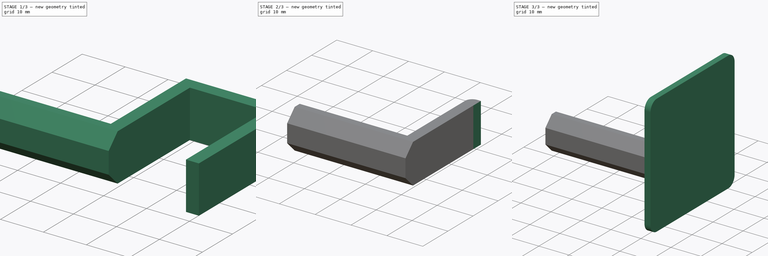
[diagram: build sequence overview — one tinted view per stage of 3, left to right]
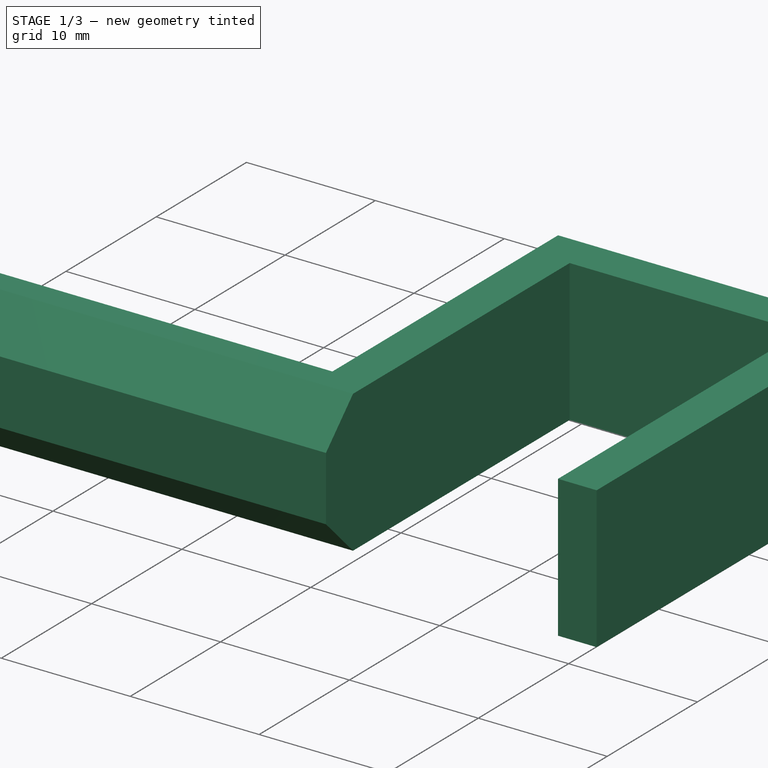
[diagram: stage 1 of 3 — iso view after this stage's code; geometry added in this stage tinted green]
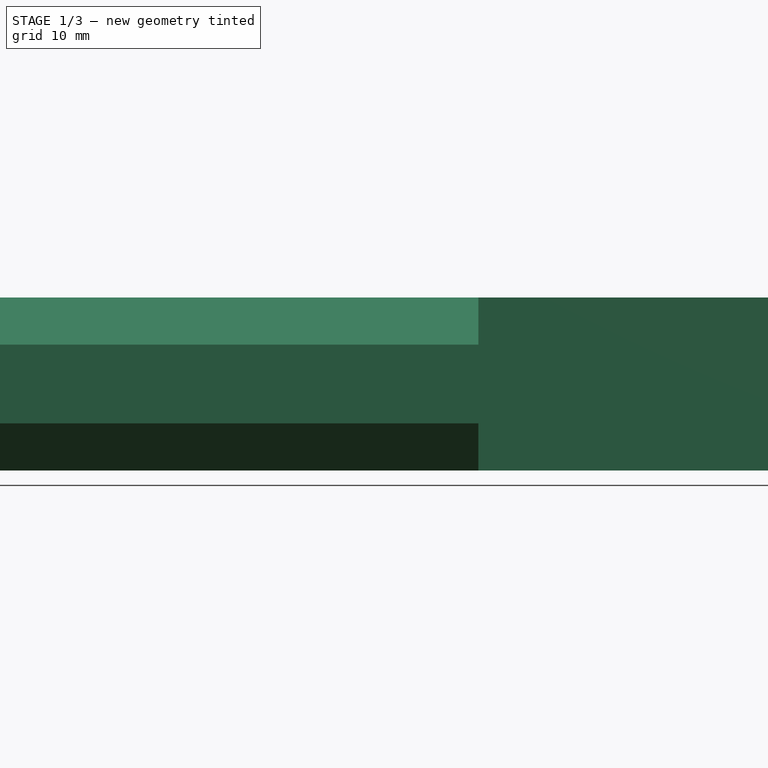
[diagram: stage 1 of 3 — front view after this stage's code; geometry added in this stage tinted green]
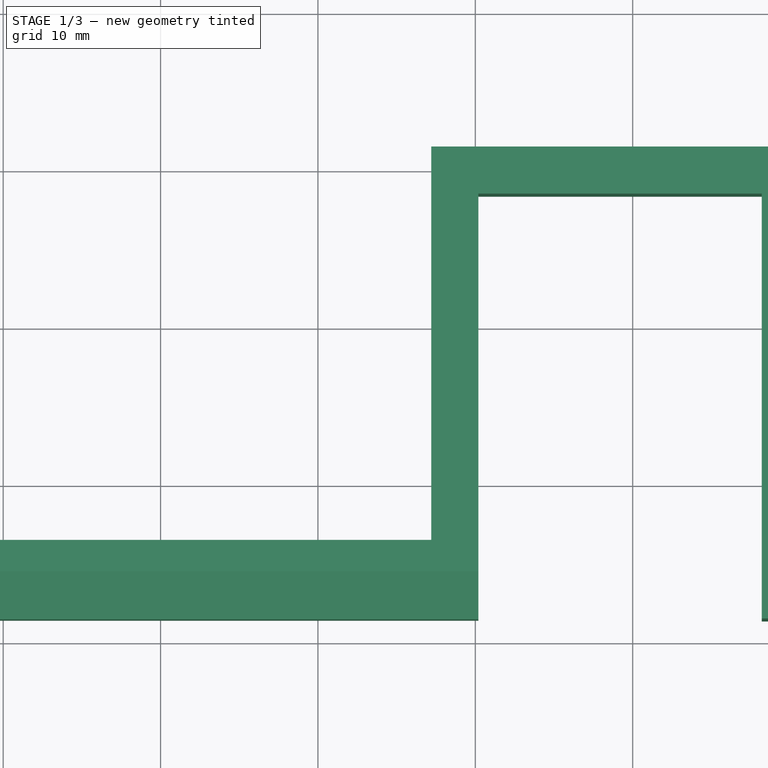
[diagram: stage 1 of 3 — top view after this stage's code; geometry added in this stage tinted green]
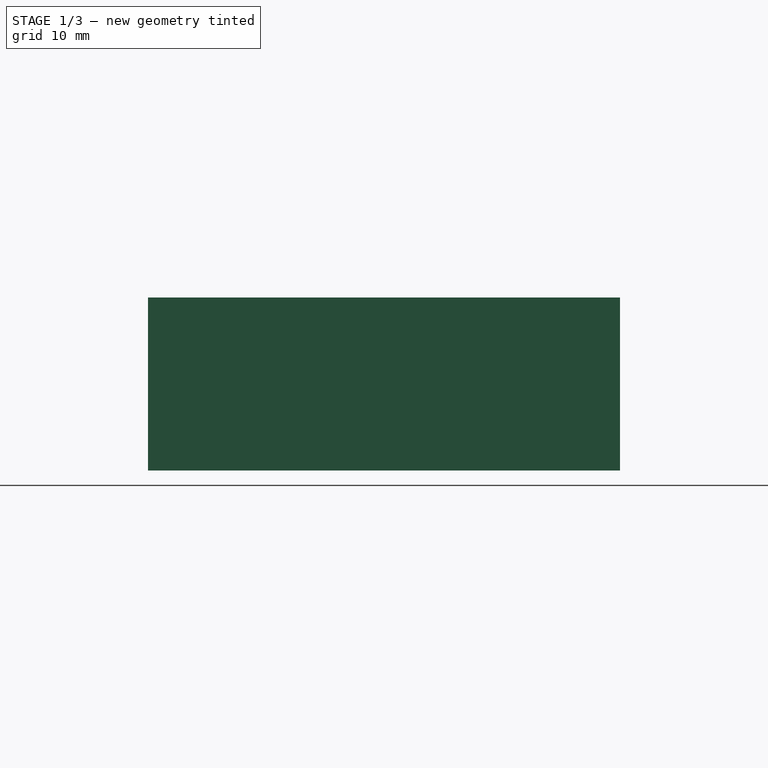
[diagram: stage 1 of 3 — right view after this stage's code; geometry added in this stage tinted green]
FCSTD DOCUMENT  (FreeCAD 0.19R24267 +148 (Git))
Label: Gancho_Pared
License: All rights reserved
LicenseURL: http://en.wikipedia.org/wiki/All_rights_reserved
objects: Sketcher::SketchObject×3, PartDesign::Pad×2, PartDesign::Fillet×2, PartDesign::Chamfer×1, PartDesign::Pocket×1, PartDesign::Body×1
note: 16 computed .brp shape members not serialized (recipe doc carries the construction recipe); baked Part::Feature solids carry a one-line shape summary decoded from their .brp

FEATURE [Sketcher::SketchObject] Sketch
  FullyConstrained = false
  MapMode = 5
  Support = -> [XY_Plane]
  sketch-geometry (10):
    g0: LineSegment StartX=-22.8005 StartY=-3.59902 StartZ=0 EndX=-22.8005 EndY=-8.59902 EndZ=0
    g1: LineSegment StartX=-22.8005 StartY=-8.59902 StartZ=0 EndX=10.1995 EndY=-8.59902 EndZ=0
    g2: LineSegment StartX=10.1995 StartY=-8.59902 StartZ=0 EndX=10.1995 EndY=18.401 EndZ=0
    g3: LineSegment StartX=10.1995 StartY=18.401 StartZ=0 EndX=28.1995 EndY=18.401 EndZ=0
    g4: LineSegment StartX=28.1995 StartY=18.401 StartZ=0 EndX=28.1995 EndY=-8.59902 EndZ=0
    g5: LineSegment StartX=28.1995 StartY=-8.59902 StartZ=0 EndX=31.1995 EndY=-8.59902 EndZ=0
    g6: LineSegment StartX=31.1995 StartY=-8.59902 StartZ=0 EndX=31.1995 EndY=21.401 EndZ=0
    g7: LineSegment StartX=31.1995 StartY=21.401 StartZ=0 EndX=7.19953 EndY=21.401 EndZ=0
    g8: LineSegment StartX=7.19953 StartY=21.401 StartZ=0 EndX=7.19953 EndY=-3.59902 EndZ=0
    g9: LineSegment StartX=7.19953 StartY=-3.59902 StartZ=0 EndX=-22.8005 EndY=-3.59902 EndZ=0
  constraints (28):
    c: Coincident(g0,g1)
    c: Coincident(g1,g2)
    c: Coincident(g2,g3)
    c: Coincident(g3,g4)
    c: Coincident(g4,g5)
    c: Coincident(g5,g6)
    c: Coincident(g6,g7)
    c: Coincident(g7,g8)
    c: Coincident(g8,g9)
    c: Coincident(g9,g0)
    c: Horizontal(g9)
    c: Horizontal(g1)
    c: Horizontal(g5)
    c: Horizontal(g3)
    c: Horizontal(g7)
    c: Vertical(g0)
    c: Vertical(g8)
    c: Vertical(g2)
    c: Vertical(g4)
    c: Vertical(g6)
    c: Equal(g2,g4)
    c: Distance(g5) = 3
    c: DistanceX(g8,g1) = 3
    c: DistanceY(g0,g0) = 5
    c: Distance(g6) = 30
    c: DistanceY(g3,g6) = 3
    c: Distance(g3) = 18
    c: Distance(g9) = 30
FEATURE [PartDesign::Pad] Pad
  AllowMultiFace = false
  Direction = (1,1,1)
  Length = 11
  Length2 = 100
  Profile = -> Sketch
  Type = 0
FEATURE [PartDesign::Chamfer] Chamfer
  Angle = 45
  Base = -> Pad [Edge6,Edge7]
  BaseFeature = -> Pad
  ChamferType = 0
  FlipDirection = false
  Size = 3
  Size2 = 1
  SupportTransform = false
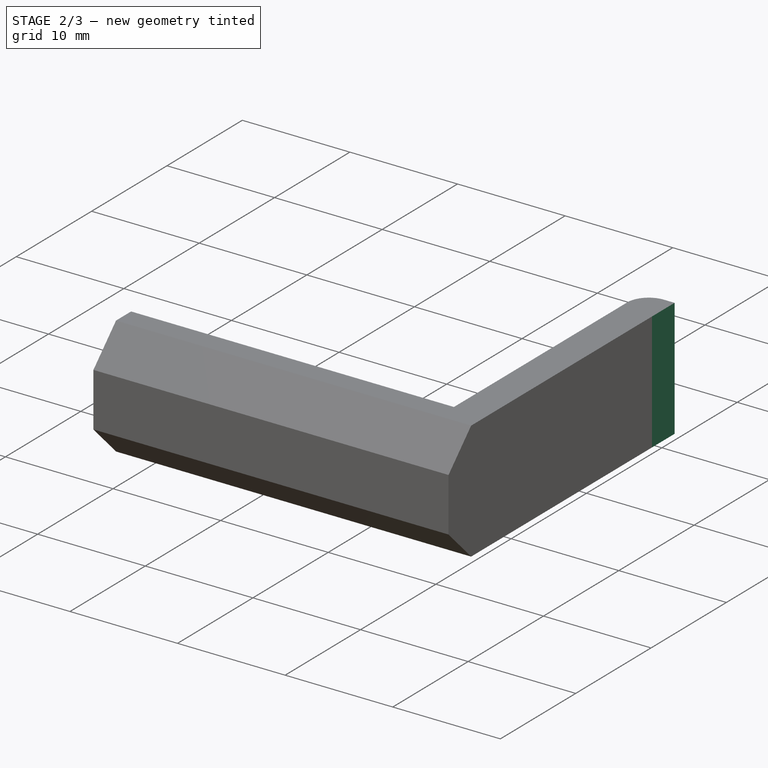
[diagram: stage 2 of 3 — iso view after this stage's code; geometry added in this stage tinted green]
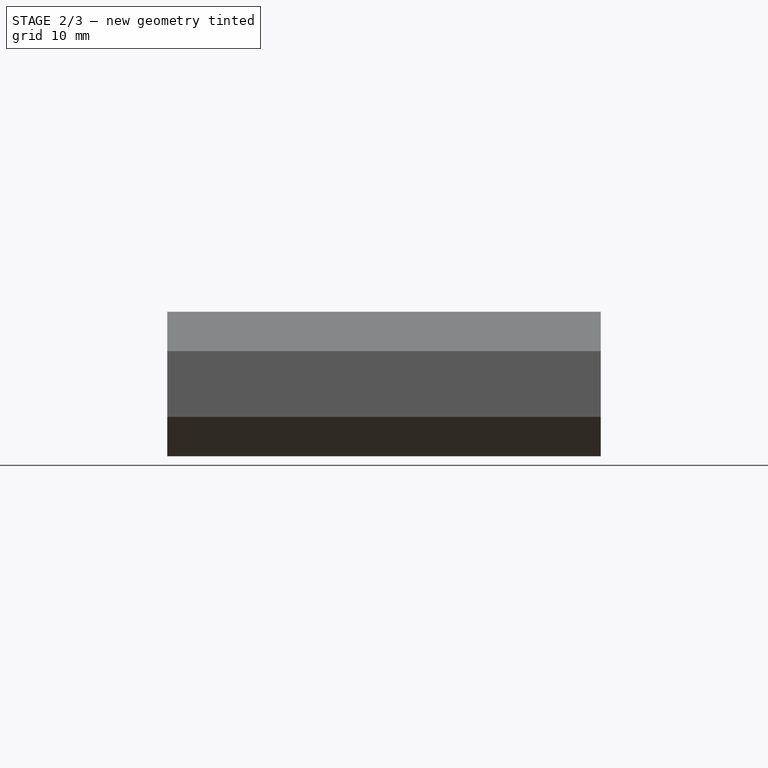
[diagram: stage 2 of 3 — front view after this stage's code; geometry added in this stage tinted green]
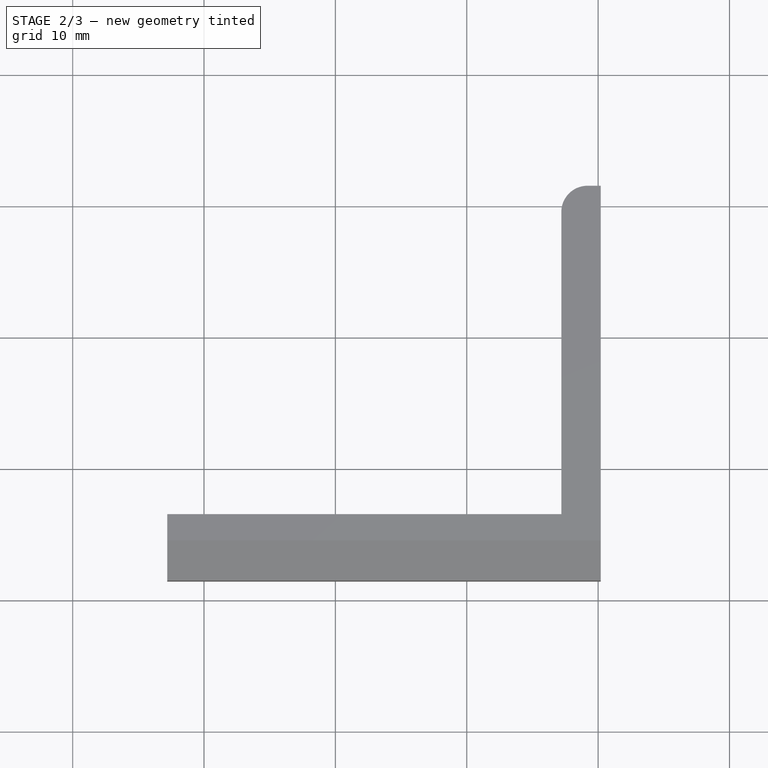
[diagram: stage 2 of 3 — top view after this stage's code; geometry added in this stage tinted green]
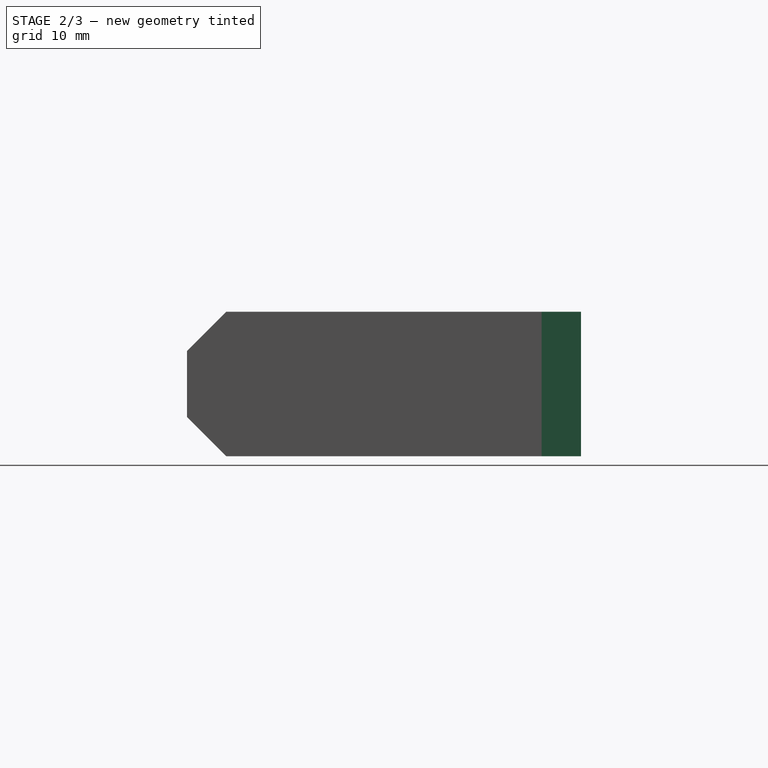
[diagram: stage 2 of 3 — right view after this stage's code; geometry added in this stage tinted green]
FEATURE [PartDesign::Fillet] Fillet
  Base = -> Chamfer [Edge34,Edge32]
  BaseFeature = -> Chamfer
  Radius = 2
  SupportTransform = false
FEATURE [Sketcher::SketchObject] Sketch001
  ExternalGeometry = -> [Fillet]
  FullyConstrained = false
  MapMode = 5
  Placement = pos=(0,0,11) rot=(0,0,1;0rad)
  Support = -> [Fillet]
  sketch-geometry (4):
    g0: LineSegment StartX=10.1995 StartY=33.4012 StartZ=0 EndX=50.0018 EndY=33.4012 EndZ=0
    g1: LineSegment StartX=50.0018 StartY=33.4012 StartZ=0 EndX=50.0018 EndY=-22.604 EndZ=0
    g2: LineSegment StartX=50.0018 StartY=-22.604 StartZ=0 EndX=10.1995 EndY=-22.604 EndZ=0
    g3: LineSegment StartX=10.1995 StartY=-22.604 StartZ=0 EndX=10.1995 EndY=33.4012 EndZ=0
  constraints (9):
    c: Coincident(g0,g1)
    c: Coincident(g1,g2)
    c: Coincident(g2,g3)
    c: Coincident(g3,g0)
    c: Horizontal(g0)
    c: Horizontal(g2)
    c: Vertical(g1)
    c: Vertical(g3)
    c: PointOnObject(g-3,g3)
FEATURE [PartDesign::Pocket] Pocket
  BaseFeature = -> Fillet
  Length = 50
  Length2 = 100
  Profile = -> Sketch001
  Type = 0
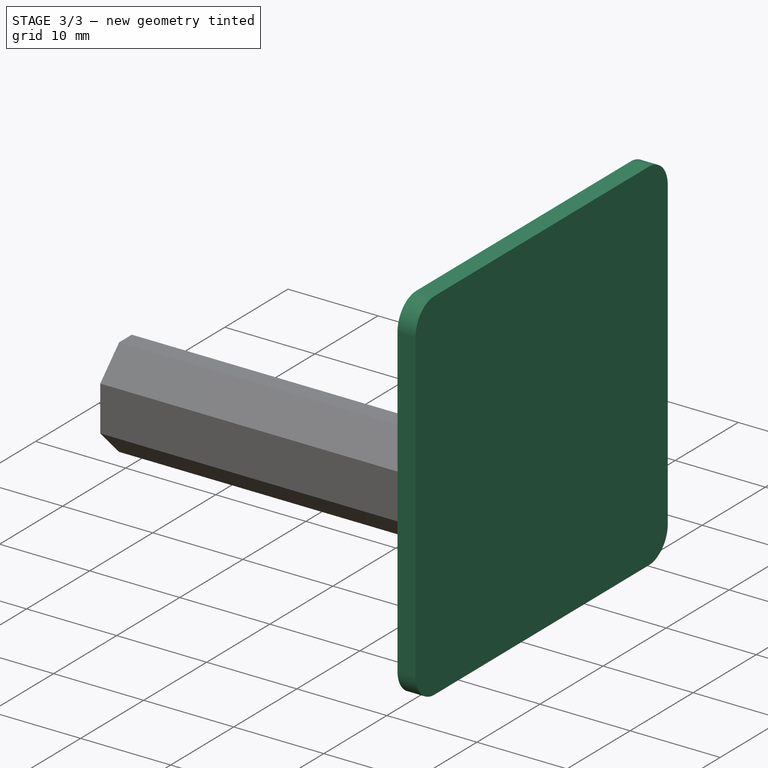
[diagram: stage 3 of 3 — iso view after this stage's code; geometry added in this stage tinted green]
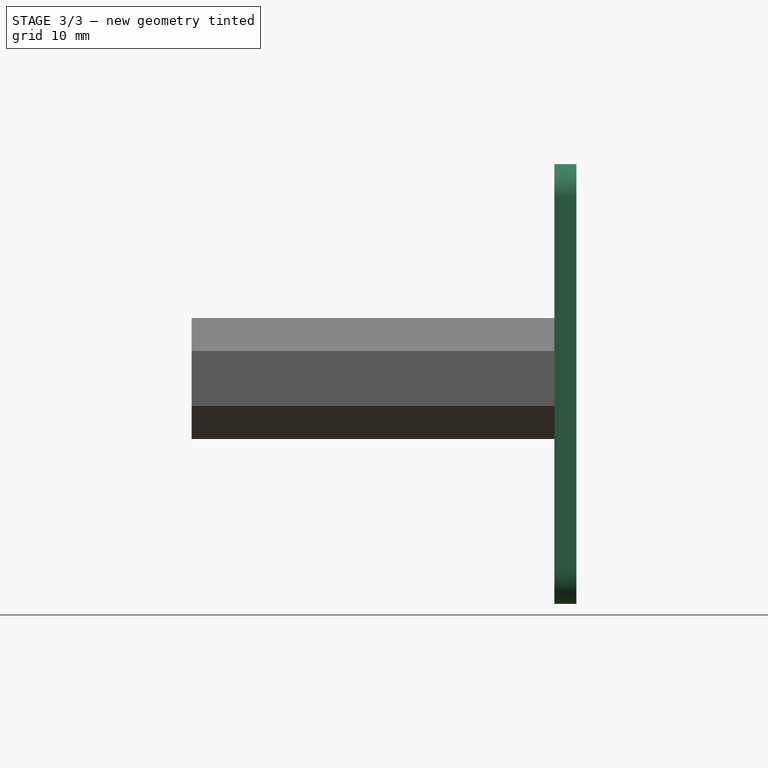
[diagram: stage 3 of 3 — front view after this stage's code; geometry added in this stage tinted green]
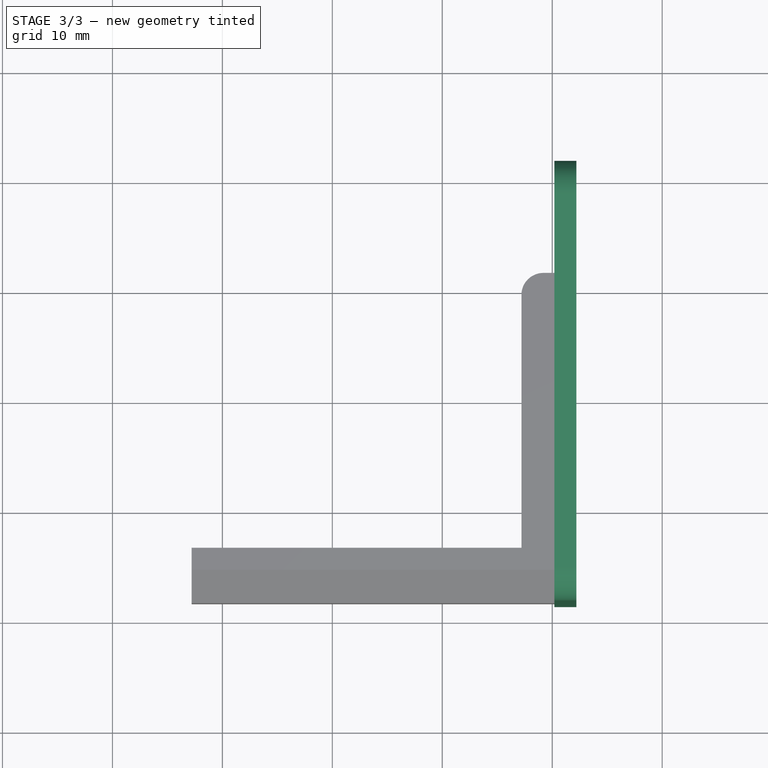
[diagram: stage 3 of 3 — top view after this stage's code; geometry added in this stage tinted green]
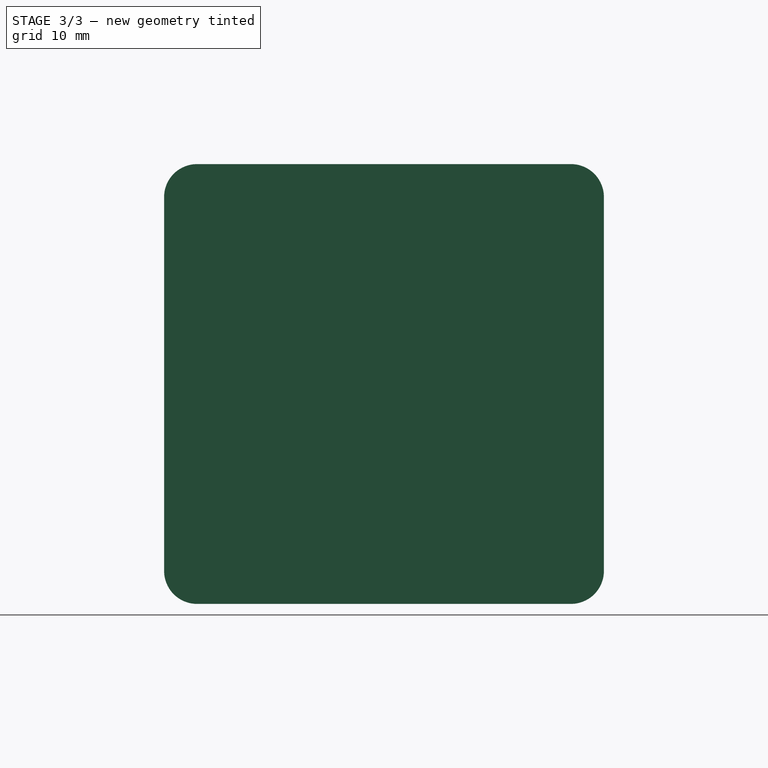
[diagram: stage 3 of 3 — right view after this stage's code; geometry added in this stage tinted green]
FEATURE [Sketcher::SketchObject] Sketch002
  ExternalGeometry = -> [Pocket]
  FullyConstrained = true
  MapMode = 5
  Placement = pos=(10.1995,0,0) rot=(0.57735,0.57735,0.57735;2.0944rad)
  Support = -> [Pocket]
  sketch-geometry (4):
    g0: LineSegment StartX=-8.59902 StartY=25 StartZ=0 EndX=31.401 EndY=25 EndZ=0
    g1: LineSegment StartX=31.401 StartY=25 StartZ=0 EndX=31.401 EndY=-15 EndZ=0
    g2: LineSegment StartX=31.401 StartY=-15 StartZ=0 EndX=-8.59902 EndY=-15 EndZ=0
    g3: LineSegment StartX=-8.59902 StartY=-15 StartZ=0 EndX=-8.59902 EndY=25 EndZ=0
  constraints (12):
    c: Coincident(g0,g1)
    c: Coincident(g1,g2)
    c: Coincident(g2,g3)
    c: Coincident(g3,g0)
    c: Horizontal(g0)
    c: Horizontal(g2)
    c: Vertical(g1)
    c: Vertical(g3)
    c: Distance(g1) = 40
    c: Distance(g0) = 40
    c: DistanceX(g2,g-3) = 0
    c: DistanceY(g1,g-4) = 15
FEATURE [PartDesign::Pad] Pad001
  BaseFeature = -> Pocket
  Direction = (1,1,1)
  Length = 2
  Length2 = 100
  Profile = -> Sketch002
  Type = 0
FEATURE [PartDesign::Fillet] Fillet001
  Base = -> Pad001 [Edge2,Edge10,Edge5,Edge1]
  BaseFeature = -> Pad001
  Radius = 3
  SupportTransform = false
FEATURE [PartDesign::Body] Body
  Group = -> [Sketch,Pad,Chamfer,Fillet,Sketch001,Pocket,Sketch002,Pad001,Fillet001]
  Origin = -> Origin
  Tip = -> Fillet001
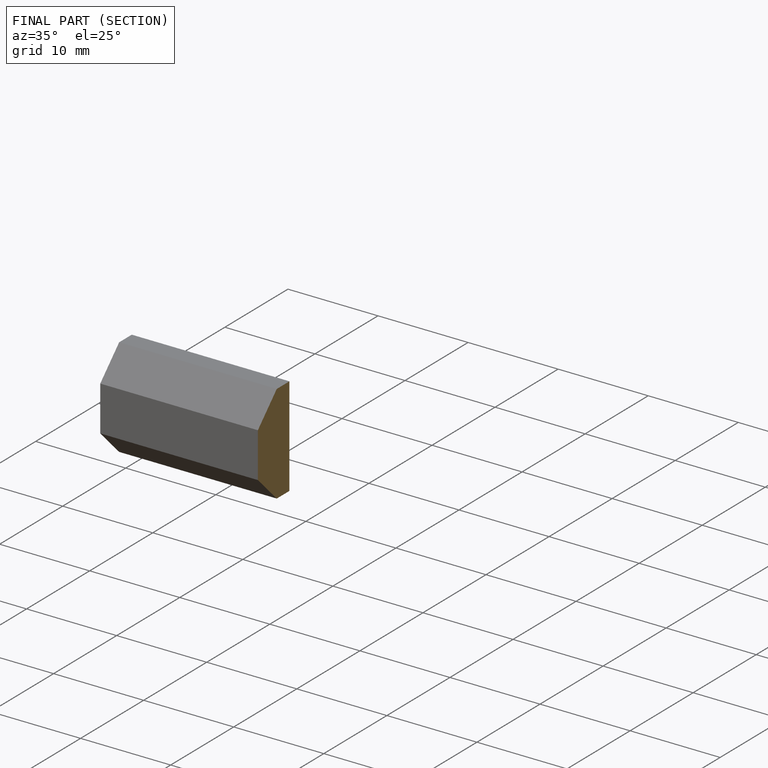
[diagram: finished part — half-section view (interior)]
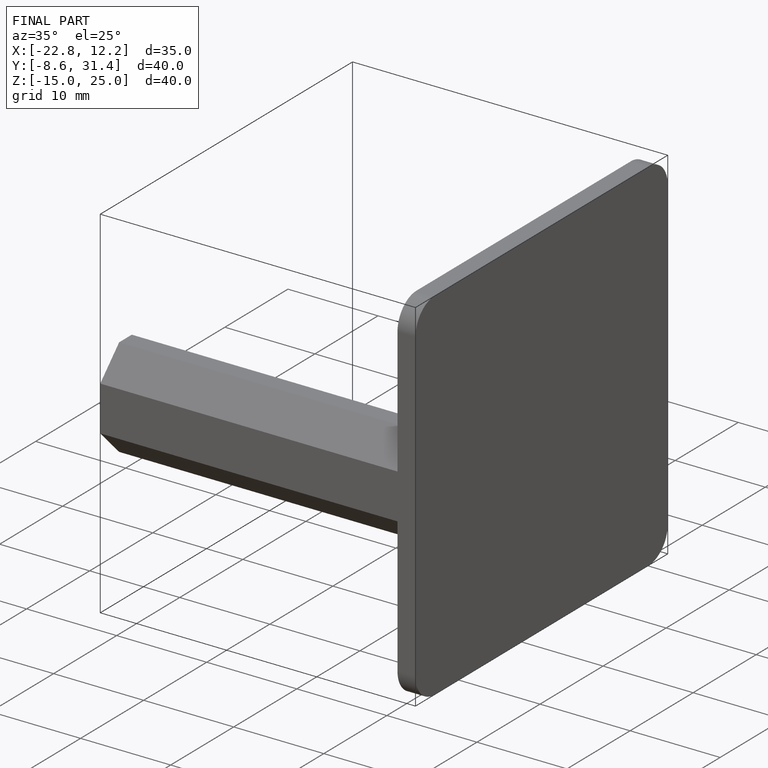
[diagram: finished part — iso view with bounding-box wireframe]
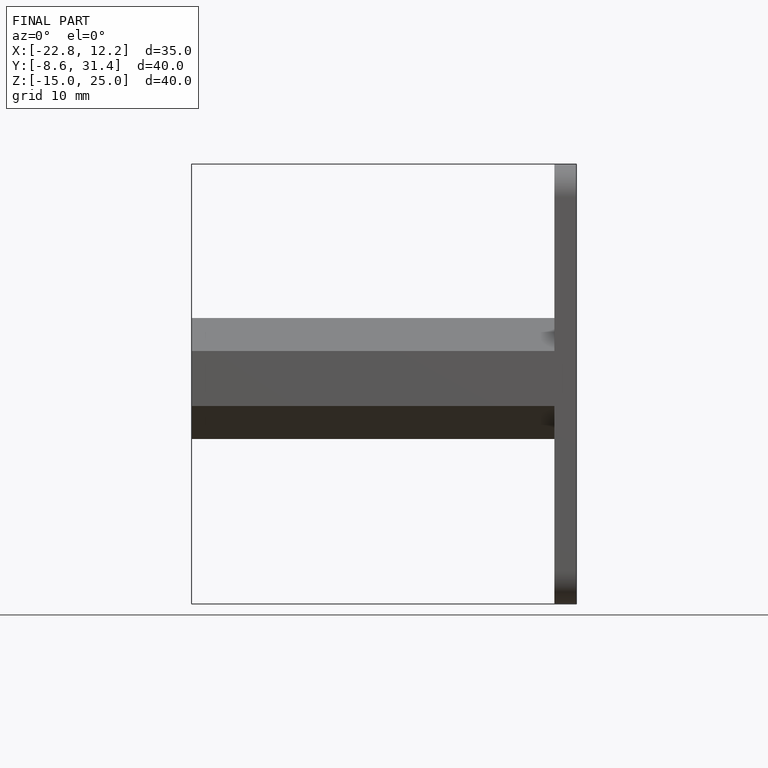
[diagram: finished part — front view with bounding-box wireframe]
